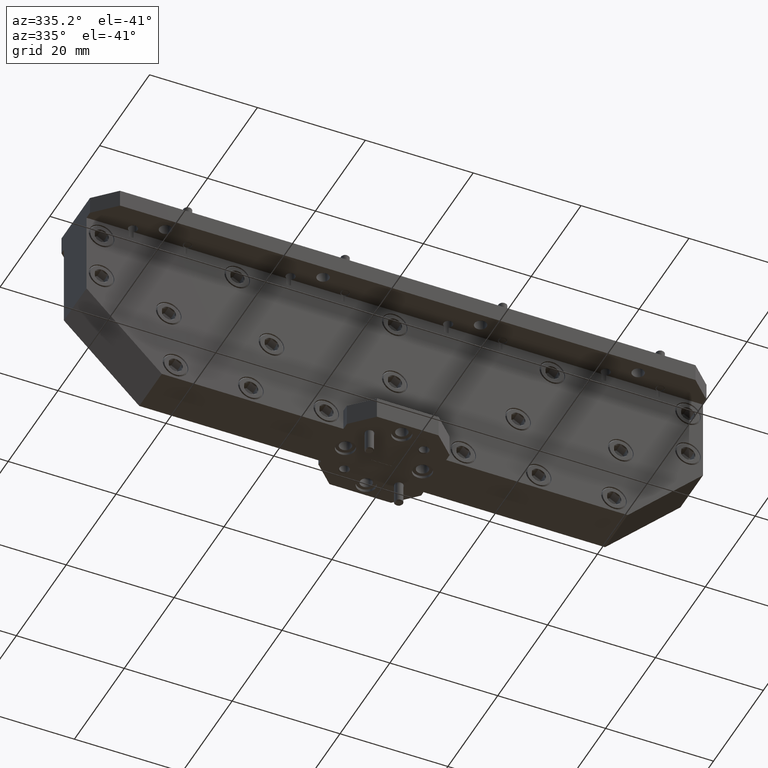
[diagram: clean part render]
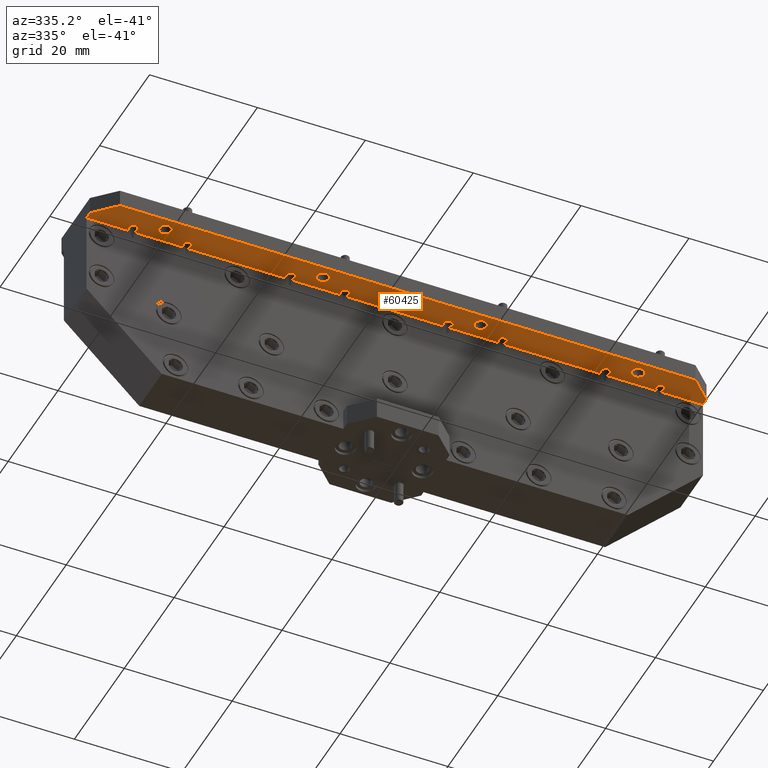
[diagram: same view with one face highlighted and labeled with its STEP entity id]
A machine part, auxiliary view. The second image highlights one B-rep face of the part: STEP entity #60425.
In plain terms, the highlighted planar face has unit normal (0, 0, -1).
Its self-contained STEP definition (entity closure, byte-faithful):
#428 = ORIENTED_EDGE ( 'NONE', *, *, #54810, .F. ) ;
#1046 = EDGE_CURVE ( 'NONE', #100543, #53469, #28962, .T. ) ;
#1075 = DIRECTION ( 'NONE',  ( 2.810403800415408800E-016, 2.130321118248032300E-032, -1.000000000000000000 ) ) ;
#1293 = CARTESIAN_POINT ( 'NONE',  ( -0.7738737822087168300, -0.2358737822087166000, 0.2449999999999993300 ) ) ;
#1312 = CARTESIAN_POINT ( 'NONE',  ( 1.526126217791283300, -0.2358737822087163300, 0.2450000000000000000 ) ) ;
#1395 = CIRCLE ( 'NONE', #94514, 0.04449999999999975500 ) ;
#1747 = VERTEX_POINT ( 'NONE', #98687 ) ;
#1990 = EDGE_CURVE ( 'NONE', #63306, #80687, #40117, .T. ) ;
#2255 = DIRECTION ( 'NONE',  ( 2.810403800415408800E-016, 2.130321118248032300E-032, -1.000000000000000000 ) ) ;
#2482 = LINE ( 'NONE', #51304, #44425 ) ;
#2524 = AXIS2_PLACEMENT_3D ( 'NONE', #48367, #106385, #56806 ) ;
#2632 = CARTESIAN_POINT ( 'NONE',  ( -0.3453762177912832500, -0.2358737822087165500, 0.2449999999999994400 ) ) ;
#2739 = VECTOR ( 'NONE', #58140, 39.37007874015748100 ) ;
#2803 = EDGE_CURVE ( 'NONE', #16704, #89440, #38404, .T. ) ;
#2999 = ORIENTED_EDGE ( 'NONE', *, *, #63690, .F. ) ;
#3288 = VERTEX_POINT ( 'NONE', #84751 ) ;
#3681 = VERTEX_POINT ( 'NONE', #65133 ) ;
#4426 = AXIS2_PLACEMENT_3D ( 'NONE', #24847, #83450, #33226 ) ;
#4440 = CARTESIAN_POINT ( 'NONE',  ( -0.7738737822087168300, -0.2358737822087166000, 0.2449999999999993300 ) ) ;
#4942 = CIRCLE ( 'NONE', #6669, 0.03349999999999979400 ) ;
#5065 = AXIS2_PLACEMENT_3D ( 'NONE', #7204, #65962, #15545 ) ;
#5088 = DIRECTION ( 'NONE',  ( 2.810403800415408800E-016, 2.130321118248032300E-032, -1.000000000000000000 ) ) ;
#5190 = DIRECTION ( 'NONE',  ( 2.810403800415408800E-016, 2.130321118248032300E-032, -1.000000000000000000 ) ) ;
#5421 = VERTEX_POINT ( 'NONE', #105402 ) ;
#5531 = CIRCLE ( 'NONE', #10774, 0.04449999999999969300 ) ;
#5585 = LINE ( 'NONE', #68829, #91914 ) ;
#5810 = DIRECTION ( 'NONE',  ( -1.000000000000000000, 0.0000000000000000000, 0.0000000000000000000 ) ) ;
#5950 = ORIENTED_EDGE ( 'NONE', *, *, #28236, .F. ) ;
#6369 = EDGE_CURVE ( 'NONE', #54012, #3681, #19565, .T. ) ;
#6576 = CARTESIAN_POINT ( 'NONE',  ( 1.923873782208716400, -0.2358737822087162200, 0.2450000000000001100 ) ) ;
#6669 = AXIS2_PLACEMENT_3D ( 'NONE', #1312, #59996, #9740 ) ;
#6758 = CIRCLE ( 'NONE', #52515, 0.03349999999999979400 ) ;
#6891 = ORIENTED_EDGE ( 'NONE', *, *, #33561, .T. ) ;
#7005 = AXIS2_PLACEMENT_3D ( 'NONE', #38067, #96459, #46593 ) ;
#7011 = DIRECTION ( 'NONE',  ( -1.000000000000000000, 0.0000000000000000000, 0.0000000000000000000 ) ) ;
#7182 = DIRECTION ( 'NONE',  ( 2.810403800415408800E-016, 2.130321118248032300E-032, -1.000000000000000000 ) ) ;
#7204 = CARTESIAN_POINT ( 'NONE',  ( 0.7738737822087168300, -0.2358737822087164900, 0.2449999999999997700 ) ) ;
#7913 = CARTESIAN_POINT ( 'NONE',  ( -7.172759518639496200E-017, -0.2070000000000000200, 0.2449999999999995800 ) ) ;
#8030 = DIRECTION ( 'NONE',  ( -1.000000000000000000, 0.0000000000000000000, 0.0000000000000000000 ) ) ;
#8173 = DIRECTION ( 'NONE',  ( 2.810403800415408800E-016, 2.130321118248032300E-032, -1.000000000000000000 ) ) ;
#8541 = DIRECTION ( 'NONE',  ( -1.000000000000000000, 0.0000000000000000000, 0.0000000000000000000 ) ) ;
#9686 = VERTEX_POINT ( 'NONE', #12814 ) ;
#9716 = DIRECTION ( 'NONE',  ( -1.000000000000000000, 0.0000000000000000000, 0.0000000000000000000 ) ) ;
#9740 = DIRECTION ( 'NONE',  ( -1.000000000000000000, 0.0000000000000000000, 0.0000000000000000000 ) ) ;
#9883 = DIRECTION ( 'NONE',  ( -1.000000000000000000, 1.387778780781436600E-017, -2.810403800415408800E-016 ) ) ;
#10774 = AXIS2_PLACEMENT_3D ( 'NONE', #23383, #82045, #31806 ) ;
#10803 = EDGE_CURVE ( 'NONE', #92658, #94042, #1395, .T. ) ;
#11058 = CARTESIAN_POINT ( 'NONE',  ( 0.07593869307895577400, -2.587938693078965200, 0.2449999999999996100 ) ) ;
#11938 = CARTESIAN_POINT ( 'NONE',  ( 0.5750000000000000700, -0.3182500000000000900, 0.2449999999999997200 ) ) ;
#12134 = ORIENTED_EDGE ( 'NONE', *, *, #17657, .F. ) ;
#12220 = CARTESIAN_POINT ( 'NONE',  ( -0.3761262177912831900, -0.2358737822087165500, 0.2449999999999994400 ) ) ;
#12632 = VECTOR ( 'NONE', #104179, 39.37007874015748100 ) ;
#12785 = DIRECTION ( 'NONE',  ( -1.000000000000000000, 0.0000000000000000000, 0.0000000000000000000 ) ) ;
#12794 = CARTESIAN_POINT ( 'NONE',  ( 0.7431237822087168900, -0.2358737822087164900, 0.2449999999999997700 ) ) ;
#12814 = CARTESIAN_POINT ( 'NONE',  ( 0.4096262177912835500, -0.2358737822087165200, 0.2449999999999996300 ) ) ;
#12815 = VECTOR ( 'NONE', #86226, 39.37007874015748100 ) ;
#12994 = EDGE_CURVE ( 'NONE', #80687, #63306, #5531, .T. ) ;
#13504 = CARTESIAN_POINT ( 'NONE',  ( 1.923873782208716400, -0.2358737822087162200, 0.2450000000000001100 ) ) ;
#13593 = CARTESIAN_POINT ( 'NONE',  ( 0.3761262177912837500, -0.2358737822087165200, 0.2449999999999996300 ) ) ;
#13800 = AXIS2_PLACEMENT_3D ( 'NONE', #36926, #95320, #45397 ) ;
#14250 = DIRECTION ( 'NONE',  ( 2.810403800415408800E-016, 2.130321118248032300E-032, -1.000000000000000000 ) ) ;
#14251 = AXIS2_PLACEMENT_3D ( 'NONE', #16904, #67338, #8541 ) ;
#14384 = DIRECTION ( 'NONE',  ( 2.810403800415408800E-016, 2.130321118248032300E-032, -1.000000000000000000 ) ) ;
#14437 = CIRCLE ( 'NONE', #37613, 0.03074999999999993700 ) ;
#14792 = CIRCLE ( 'NONE', #90361, 0.04449999999999975500 ) ;
#14881 = CARTESIAN_POINT ( 'NONE',  ( -0.6194999999999995000, -0.3182500000000000300, 0.2449999999999994100 ) ) ;
#15414 = VERTEX_POINT ( 'NONE', #81799 ) ;
#15545 = DIRECTION ( 'NONE',  ( -1.000000000000000000, 0.0000000000000000000, 0.0000000000000000000 ) ) ;
#15569 = EDGE_CURVE ( 'NONE', #61794, #63623, #14437, .T. ) ;
#15739 = EDGE_CURVE ( 'NONE', #5421, #1747, #6758, .T. ) ;
#16054 = CARTESIAN_POINT ( 'NONE',  ( -0.7403737822087170800, -0.2358737822087166000, 0.2449999999999993300 ) ) ;
#16449 = CIRCLE ( 'NONE', #79153, 0.03074999999999993700 ) ;
#16688 = EDGE_CURVE ( 'NONE', #92559, #28284, #68993, .T. ) ;
#16704 = VERTEX_POINT ( 'NONE', #71040 ) ;
#16904 = CARTESIAN_POINT ( 'NONE',  ( -1.725000000000000100, -0.3182499999999998100, 0.2449999999999991100 ) ) ;
#17100 = CARTESIAN_POINT ( 'NONE',  ( 1.543113115711845600, -0.2070000000000000500, 0.2450000000000000000 ) ) ;
#17318 = VERTEX_POINT ( 'NONE', #12794 ) ;
#17466 = CARTESIAN_POINT ( 'NONE',  ( 1.526126217791283300, -0.2358737822087163300, 0.2450000000000000000 ) ) ;
#17657 = EDGE_CURVE ( 'NONE', #98293, #58405, #73768, .T. ) ;
#17829 = EDGE_CURVE ( 'NONE', #63854, #98293, #59180, .T. ) ;
#18641 = VERTEX_POINT ( 'NONE', #57730 ) ;
#18682 = DIRECTION ( 'NONE',  ( 2.810403800415408800E-016, 2.130321118248032300E-032, -1.000000000000000000 ) ) ;
#18746 = CIRCLE ( 'NONE', #5065, 0.03074999999999993700 ) ;
#18873 = VERTEX_POINT ( 'NONE', #53613 ) ;
#19068 = AXIS2_PLACEMENT_3D ( 'NONE', #87214, #14250, #85830 ) ;
#19263 = CARTESIAN_POINT ( 'NONE',  ( 1.559626217791283000, -0.2358737822087163300, 0.2450000000000000000 ) ) ;
#19565 = CIRCLE ( 'NONE', #93273, 0.03074999999999993700 ) ;
#19814 = EDGE_LOOP ( 'NONE', ( #30974, #32477 ) ) ;
#20060 = CARTESIAN_POINT ( 'NONE',  ( -1.515549488572682600, -0.2069999999999999600, 0.2449999999999991400 ) ) ;
#20299 = DIRECTION ( 'NONE',  ( -1.000000000000000000, 0.0000000000000000000, 0.0000000000000000000 ) ) ;
#20576 = DIRECTION ( 'NONE',  ( -1.000000000000000000, 0.0000000000000000000, 0.0000000000000000000 ) ) ;
#20662 = EDGE_CURVE ( 'NONE', #41303, #60168, #16449, .T. ) ;
#20809 = CIRCLE ( 'NONE', #45651, 0.03074999999999993700 ) ;
#21023 = EDGE_CURVE ( 'NONE', #49986, #54012, #101159, .T. ) ;
#21030 = LINE ( 'NONE', #25515, #43416 ) ;
#21827 = EDGE_LOOP ( 'NONE', ( #22301, #55891, #25181, #67484, #84168, #45009, #71260, #12134, #107056, #31520, #100914, #26607, #36542, #67384, #29201, #53198, #68616, #47997, #62162, #51310, #94244, #26178, #22426, #55982, #88935, #77695, #50034, #76321, #75473, #428, #50099, #62027, #61175, #6891, #59152, #24156, #69631, #5950 ) ) ;
#21887 = DIRECTION ( 'NONE',  ( -1.000000000000000000, 0.0000000000000000000, 0.0000000000000000000 ) ) ;
#21975 = DIRECTION ( 'NONE',  ( -1.000000000000000000, 0.0000000000000000000, 0.0000000000000000000 ) ) ;
#22301 = ORIENTED_EDGE ( 'NONE', *, *, #15739, .F. ) ;
#22426 = ORIENTED_EDGE ( 'NONE', *, *, #82022, .F. ) ;
#23383 = CARTESIAN_POINT ( 'NONE',  ( -0.5749999999999998400, -0.3182500000000000300, 0.2449999999999994100 ) ) ;
#23556 = CARTESIAN_POINT ( 'NONE',  ( 1.954623782208716200, -0.2358737822087162200, 0.2450000000000001100 ) ) ;
#23998 = CARTESIAN_POINT ( 'NONE',  ( 2.099999999999999600, -0.4119999999999998700, 0.2450000000000001900 ) ) ;
#24156 = ORIENTED_EDGE ( 'NONE', *, *, #52113, .F. ) ;
#24786 = EDGE_CURVE ( 'NONE', #60042, #69891, #20809, .T. ) ;
#24800 = LINE ( 'NONE', #79556, #27399 ) ;
#24826 = VERTEX_POINT ( 'NONE', #92257 ) ;
#24847 = CARTESIAN_POINT ( 'NONE',  ( -1.526126217791283300, -0.2358737822087165200, 0.2449999999999991400 ) ) ;
#25020 = CARTESIAN_POINT ( 'NONE',  ( -0.3761262177912831900, -0.2358737822087165500, 0.2449999999999994400 ) ) ;
#25181 = ORIENTED_EDGE ( 'NONE', *, *, #26199, .F. ) ;
#25439 = VECTOR ( 'NONE', #39071, 39.37007874015748100 ) ;
#25515 = CARTESIAN_POINT ( 'NONE',  ( -7.172759518639496200E-017, -0.2070000000000000200, 0.2449999999999995800 ) ) ;
#25738 = VECTOR ( 'NONE', #9883, 39.37007874015748100 ) ;
#25844 = VERTEX_POINT ( 'NONE', #102576 ) ;
#25916 = DIRECTION ( 'NONE',  ( -1.000000000000000000, 0.0000000000000000000, 0.0000000000000000000 ) ) ;
#26138 = CARTESIAN_POINT ( 'NONE',  ( 0.3761262177912837500, -0.2358737822087165200, 0.2449999999999996300 ) ) ;
#26178 = ORIENTED_EDGE ( 'NONE', *, *, #84105, .F. ) ;
#26199 = EDGE_CURVE ( 'NONE', #90205, #86973, #46362, .T. ) ;
#26221 = VERTEX_POINT ( 'NONE', #17100 ) ;
#26607 = ORIENTED_EDGE ( 'NONE', *, *, #52581, .F. ) ;
#26666 = EDGE_LOOP ( 'NONE', ( #58586, #2999 ) ) ;
#27189 = CARTESIAN_POINT ( 'NONE',  ( -1.957373782208716100, -0.2358737822087165200, 0.2449999999999990200 ) ) ;
#27399 = VECTOR ( 'NONE', #79924, 39.37007874015748100 ) ;
#27496 = VERTEX_POINT ( 'NONE', #27189 ) ;
#27808 = CIRCLE ( 'NONE', #32995, 0.03349999999999979400 ) ;
#28236 = EDGE_CURVE ( 'NONE', #1747, #27496, #65334, .T. ) ;
#28284 = VERTEX_POINT ( 'NONE', #73333 ) ;
#28839 = ORIENTED_EDGE ( 'NONE', *, *, #57403, .F. ) ;
#28851 = CARTESIAN_POINT ( 'NONE',  ( 1.492626217791283500, -0.2358737822087163300, 0.2450000000000000000 ) ) ;
#28962 = CIRCLE ( 'NONE', #106202, 0.04449999999999975500 ) ;
#29201 = ORIENTED_EDGE ( 'NONE', *, *, #105776, .F. ) ;
#29354 = DIRECTION ( 'NONE',  ( 2.810403800415408800E-016, 2.130321118248032300E-032, -1.000000000000000000 ) ) ;
#29365 = CARTESIAN_POINT ( 'NONE',  ( -0.7738737822087168300, -0.2358737822087166000, 0.2449999999999993300 ) ) ;
#29423 = DIRECTION ( 'NONE',  ( 2.810403800415408800E-016, 2.130321118248032300E-032, -1.000000000000000000 ) ) ;
#29585 = VECTOR ( 'NONE', #33288, 39.37007874015748100 ) ;
#30289 = CARTESIAN_POINT ( 'NONE',  ( -7.172759518639496200E-017, -0.2070000000000000200, 0.2449999999999995800 ) ) ;
#30423 = VERTEX_POINT ( 'NONE', #89818 ) ;
#30488 = CIRCLE ( 'NONE', #83881, 0.03074999999999993700 ) ;
#30763 = CARTESIAN_POINT ( 'NONE',  ( 0.5305000000000003000, -0.3182500000000000900, 0.2449999999999997200 ) ) ;
#30974 = ORIENTED_EDGE ( 'NONE', *, *, #2803, .F. ) ;
#31112 = CARTESIAN_POINT ( 'NONE',  ( -0.4068762177912831300, -0.2358737822087165500, 0.2449999999999994400 ) ) ;
#31520 = ORIENTED_EDGE ( 'NONE', *, *, #80889, .F. ) ;
#31806 = DIRECTION ( 'NONE',  ( -1.000000000000000000, 0.0000000000000000000, 0.0000000000000000000 ) ) ;
#32393 = AXIS2_PLACEMENT_3D ( 'NONE', #29365, #87899, #37766 ) ;
#32477 = ORIENTED_EDGE ( 'NONE', *, *, #85673, .F. ) ;
#32995 = AXIS2_PLACEMENT_3D ( 'NONE', #105646, #56021, #5810 ) ;
#33226 = DIRECTION ( 'NONE',  ( -1.000000000000000000, 0.0000000000000000000, 0.0000000000000000000 ) ) ;
#33288 = DIRECTION ( 'NONE',  ( -0.7071067811865462400, -0.7071067811865487900, -1.987255585146176500E-016 ) ) ;
#33298 = AXIS2_PLACEMENT_3D ( 'NONE', #4440, #63115, #12785 ) ;
#33395 = DIRECTION ( 'NONE',  ( -1.000000000000000000, 0.0000000000000000000, 0.0000000000000000000 ) ) ;
#33561 = EDGE_CURVE ( 'NONE', #24826, #95764, #87626, .T. ) ;
#34530 = DIRECTION ( 'NONE',  ( -1.000000000000000000, 0.0000000000000000000, 0.0000000000000000000 ) ) ;
#36038 = FACE_BOUND ( 'NONE', #102183, .T. ) ;
#36284 = EDGE_CURVE ( 'NONE', #63623, #17318, #18746, .T. ) ;
#36542 = ORIENTED_EDGE ( 'NONE', *, *, #24786, .F. ) ;
#36561 = CARTESIAN_POINT ( 'NONE',  ( -2.250000000000000900, -4.913877386157913000, 0.2449999999999989100 ) ) ;
#36926 = CARTESIAN_POINT ( 'NONE',  ( 0.3761262177912837500, -0.2358737822087165200, 0.2449999999999996300 ) ) ;
#37613 = AXIS2_PLACEMENT_3D ( 'NONE', #58400, #8173, #66960 ) ;
#37766 = DIRECTION ( 'NONE',  ( -1.000000000000000000, 0.0000000000000000000, 0.0000000000000000000 ) ) ;
#37848 = EDGE_CURVE ( 'NONE', #64992, #103769, #4942, .T. ) ;
#38067 = CARTESIAN_POINT ( 'NONE',  ( -1.526126217791283300, -0.2358737822087165200, 0.2449999999999991400 ) ) ;
#38404 = CIRCLE ( 'NONE', #14251, 0.04449999999999975500 ) ;
#38547 = CARTESIAN_POINT ( 'NONE',  ( 1.769499999999999600, -0.3182499999999998700, 0.2450000000000000500 ) ) ;
#39071 = DIRECTION ( 'NONE',  ( -1.000000000000000000, 1.387778780781436600E-017, -2.810403800415408800E-016 ) ) ;
#39081 = AXIS2_PLACEMENT_3D ( 'NONE', #13504, #72316, #21887 ) ;
#39437 = CARTESIAN_POINT ( 'NONE',  ( 1.680500000000000100, -0.3182499999999998700, 0.2450000000000000500 ) ) ;
#39509 = CARTESIAN_POINT ( 'NONE',  ( 0.3931131157118456000, -0.2070000000000000200, 0.2449999999999996300 ) ) ;
#39586 = CARTESIAN_POINT ( 'NONE',  ( -0.3867029470098837800, -0.2070000000000000200, 0.2449999999999994400 ) ) ;
#40117 = CIRCLE ( 'NONE', #19068, 0.04449999999999969300 ) ;
#40383 = VERTEX_POINT ( 'NONE', #56039 ) ;
#41093 = CARTESIAN_POINT ( 'NONE',  ( -2.250000000000000900, -0.2619999999999989600, 0.2449999999999989100 ) ) ;
#41303 = VERTEX_POINT ( 'NONE', #31112 ) ;
#41478 = CARTESIAN_POINT ( 'NONE',  ( -0.7568868842881552000, -0.2070000000000000200, 0.2449999999999993300 ) ) ;
#41910 = CARTESIAN_POINT ( 'NONE',  ( -1.940860680129278000, -0.2069999999999999600, 0.2449999999999990200 ) ) ;
#42374 = DIRECTION ( 'NONE',  ( -1.000000000000000000, 1.387778780781436600E-017, -2.810403800415408800E-016 ) ) ;
#42925 = EDGE_CURVE ( 'NONE', #86973, #5421, #50687, .T. ) ;
#43416 = VECTOR ( 'NONE', #42374, 39.37007874015748100 ) ;
#44137 = ORIENTED_EDGE ( 'NONE', *, *, #12994, .F. ) ;
#44425 = VECTOR ( 'NONE', #59793, 39.37007874015748100 ) ;
#45009 = ORIENTED_EDGE ( 'NONE', *, *, #71470, .F. ) ;
#45049 = DIRECTION ( 'NONE',  ( 1.000000000000000000, -1.387778780781436600E-017, 2.810403800415408800E-016 ) ) ;
#45397 = DIRECTION ( 'NONE',  ( -1.000000000000000000, 0.0000000000000000000, 0.0000000000000000000 ) ) ;
#45651 = AXIS2_PLACEMENT_3D ( 'NONE', #25020, #83615, #33395 ) ;
#46362 = CIRCLE ( 'NONE', #4426, 0.03074999999999993700 ) ;
#46593 = DIRECTION ( 'NONE',  ( -1.000000000000000000, 0.0000000000000000000, 0.0000000000000000000 ) ) ;
#47223 = VERTEX_POINT ( 'NONE', #87454 ) ;
#47779 = LINE ( 'NONE', #30289, #25439 ) ;
#47997 = ORIENTED_EDGE ( 'NONE', *, *, #62314, .F. ) ;
#48367 = CARTESIAN_POINT ( 'NONE',  ( 1.526126217791283300, -0.2358737822087163300, 0.2450000000000000000 ) ) ;
#49052 = AXIS2_PLACEMENT_3D ( 'NONE', #69134, #18682, #77442 ) ;
#49986 = VERTEX_POINT ( 'NONE', #23556 ) ;
#50034 = ORIENTED_EDGE ( 'NONE', *, *, #6369, .F. ) ;
#50065 = CARTESIAN_POINT ( 'NONE',  ( 0.5750000000000000700, -0.3182500000000000900, 0.2449999999999997200 ) ) ;
#50099 = ORIENTED_EDGE ( 'NONE', *, *, #16688, .F. ) ;
#50202 = DIRECTION ( 'NONE',  ( 2.810403800415408800E-016, 2.130321118248032300E-032, -1.000000000000000000 ) ) ;
#50287 = DIRECTION ( 'NONE',  ( -1.000000000000000000, 0.0000000000000000000, 0.0000000000000000000 ) ) ;
#50687 = LINE ( 'NONE', #60145, #25738 ) ;
#51269 = CARTESIAN_POINT ( 'NONE',  ( 1.923873782208716400, -0.2358737822087162200, 0.2450000000000001100 ) ) ;
#51304 = CARTESIAN_POINT ( 'NONE',  ( -2.250000000000000900, -4.913877386157913000, 0.2449999999999989100 ) ) ;
#51310 = ORIENTED_EDGE ( 'NONE', *, *, #36284, .F. ) ;
#52113 = EDGE_CURVE ( 'NONE', #55143, #25844, #96175, .T. ) ;
#52467 = CARTESIAN_POINT ( 'NONE',  ( -1.923873782208716400, -0.2358737822087165200, 0.2449999999999990200 ) ) ;
#52515 = AXIS2_PLACEMENT_3D ( 'NONE', #52467, #2255, #60951 ) ;
#52581 = EDGE_CURVE ( 'NONE', #69891, #41303, #60068, .T. ) ;
#52662 = CARTESIAN_POINT ( 'NONE',  ( -7.172759518639496200E-017, -0.2070000000000000200, 0.2449999999999995800 ) ) ;
#53141 = PLANE ( 'NONE',  #101633 ) ;
#53170 = EDGE_CURVE ( 'NONE', #58405, #40383, #58379, .T. ) ;
#53198 = ORIENTED_EDGE ( 'NONE', *, *, #65535, .F. ) ;
#53469 = VERTEX_POINT ( 'NONE', #30763 ) ;
#53613 = CARTESIAN_POINT ( 'NONE',  ( 0.7632970529901159700, -0.2070000000000000200, 0.2449999999999997700 ) ) ;
#54012 = VERTEX_POINT ( 'NONE', #58574 ) ;
#54504 = CARTESIAN_POINT ( 'NONE',  ( -7.172759518639496200E-017, -0.2070000000000000200, 0.2449999999999995800 ) ) ;
#54770 = CARTESIAN_POINT ( 'NONE',  ( 2.249999999999999100, -0.2619999999999995700, 0.2450000000000002200 ) ) ;
#54810 = EDGE_CURVE ( 'NONE', #28284, #18641, #24800, .T. ) ;
#55143 = VERTEX_POINT ( 'NONE', #41910 ) ;
#55295 = CARTESIAN_POINT ( 'NONE',  ( -1.923873782208716400, -0.2358737822087165200, 0.2449999999999990200 ) ) ;
#55402 = CARTESIAN_POINT ( 'NONE',  ( 1.724999999999999900, -0.3182499999999998700, 0.2450000000000000500 ) ) ;
#55496 = LINE ( 'NONE', #73716, #97068 ) ;
#55891 = ORIENTED_EDGE ( 'NONE', *, *, #42925, .F. ) ;
#55955 = CARTESIAN_POINT ( 'NONE',  ( -0.8073737822087165800, -0.2358737822087166000, 0.2449999999999993300 ) ) ;
#55982 = ORIENTED_EDGE ( 'NONE', *, *, #37848, .F. ) ;
#56021 = DIRECTION ( 'NONE',  ( 2.810403800415408800E-016, 2.130321118248032300E-032, -1.000000000000000000 ) ) ;
#56039 = CARTESIAN_POINT ( 'NONE',  ( -0.7908606801292784600, -0.2070000000000000200, 0.2449999999999993300 ) ) ;
#56806 = DIRECTION ( 'NONE',  ( -1.000000000000000000, 0.0000000000000000000, 0.0000000000000000000 ) ) ;
#57210 = DIRECTION ( 'NONE',  ( 2.810403800415408800E-016, 2.130321118248032300E-032, -1.000000000000000000 ) ) ;
#57403 = EDGE_CURVE ( 'NONE', #53469, #100543, #63557, .T. ) ;
#57730 = CARTESIAN_POINT ( 'NONE',  ( 1.934450511427318100, -0.2070000000000000500, 0.2450000000000001100 ) ) ;
#58140 = DIRECTION ( 'NONE',  ( -1.000000000000000000, 1.387778780781436600E-017, -2.810403800415408800E-016 ) ) ;
#58169 = AXIS2_PLACEMENT_3D ( 'NONE', #79690, #29423, #87955 ) ;
#58233 = CIRCLE ( 'NONE', #91556, 0.03349999999999979400 ) ;
#58379 = CIRCLE ( 'NONE', #33298, 0.03349999999999979400 ) ;
#58400 = CARTESIAN_POINT ( 'NONE',  ( 0.7738737822087168300, -0.2358737822087164900, 0.2449999999999997700 ) ) ;
#58405 = VERTEX_POINT ( 'NONE', #55955 ) ;
#58446 = FACE_OUTER_BOUND ( 'NONE', #21827, .T. ) ;
#58574 = CARTESIAN_POINT ( 'NONE',  ( 1.893123782208716400, -0.2358737822087162200, 0.2450000000000001100 ) ) ;
#58586 = ORIENTED_EDGE ( 'NONE', *, *, #10803, .F. ) ;
#59152 = ORIENTED_EDGE ( 'NONE', *, *, #78415, .T. ) ;
#59180 = CIRCLE ( 'NONE', #32393, 0.03349999999999979400 ) ;
#59193 = EDGE_CURVE ( 'NONE', #27496, #55143, #27808, .T. ) ;
#59762 = DIRECTION ( 'NONE',  ( -1.000000000000000000, 0.0000000000000000000, 0.0000000000000000000 ) ) ;
#59793 = DIRECTION ( 'NONE',  ( 1.387778780781436600E-017, 1.000000000000000000, 2.759659579148537200E-032 ) ) ;
#59821 = EDGE_CURVE ( 'NONE', #30423, #60042, #89115, .T. ) ;
#59979 = DIRECTION ( 'NONE',  ( 2.810403800415408800E-016, 2.130321118248032300E-032, -1.000000000000000000 ) ) ;
#59996 = DIRECTION ( 'NONE',  ( 2.810403800415408800E-016, 2.130321118248032300E-032, -1.000000000000000000 ) ) ;
#60042 = VERTEX_POINT ( 'NONE', #63204 ) ;
#60068 = CIRCLE ( 'NONE', #60743, 0.03074999999999993700 ) ;
#60145 = CARTESIAN_POINT ( 'NONE',  ( -7.172759518639496200E-017, -0.2070000000000000200, 0.2449999999999995800 ) ) ;
#60168 = VERTEX_POINT ( 'NONE', #39586 ) ;
#60425 = ADVANCED_FACE ( 'NONE', ( #58446, #102561, #36038, #80666, #99967 ), #53141, .T. ) ;
#60743 = AXIS2_PLACEMENT_3D ( 'NONE', #12220, #71026, #20576 ) ;
#60951 = DIRECTION ( 'NONE',  ( -1.000000000000000000, 0.0000000000000000000, 0.0000000000000000000 ) ) ;
#61144 = EDGE_CURVE ( 'NONE', #15414, #90205, #30488, .T. ) ;
#61175 = ORIENTED_EDGE ( 'NONE', *, *, #95013, .F. ) ;
#61794 = VERTEX_POINT ( 'NONE', #107668 ) ;
#61939 = CARTESIAN_POINT ( 'NONE',  ( -1.536702947009883900, -0.2069999999999999600, 0.2449999999999991400 ) ) ;
#62027 = ORIENTED_EDGE ( 'NONE', *, *, #69945, .T. ) ;
#62162 = ORIENTED_EDGE ( 'NONE', *, *, #100796, .F. ) ;
#62314 = EDGE_CURVE ( 'NONE', #18873, #102406, #101447, .T. ) ;
#62539 = DIRECTION ( 'NONE',  ( 1.387778780781436600E-017, 1.000000000000000000, 2.759659579148537200E-032 ) ) ;
#62949 = VECTOR ( 'NONE', #86427, 39.37007874015748100 ) ;
#63115 = DIRECTION ( 'NONE',  ( 2.810403800415408800E-016, 2.130321118248032300E-032, -1.000000000000000000 ) ) ;
#63204 = CARTESIAN_POINT ( 'NONE',  ( -0.3655494885726826000, -0.2070000000000000200, 0.2449999999999994400 ) ) ;
#63306 = VERTEX_POINT ( 'NONE', #14881 ) ;
#63557 = CIRCLE ( 'NONE', #92256, 0.04449999999999975500 ) ;
#63623 = VERTEX_POINT ( 'NONE', #87575 ) ;
#63690 = EDGE_CURVE ( 'NONE', #94042, #92658, #14792, .T. ) ;
#63777 = DIRECTION ( 'NONE',  ( -1.000000000000000000, 0.0000000000000000000, 0.0000000000000000000 ) ) ;
#63854 = VERTEX_POINT ( 'NONE', #41478 ) ;
#63896 = DIRECTION ( 'NONE',  ( -1.000000000000000000, 0.0000000000000000000, 0.0000000000000000000 ) ) ;
#64292 = AXIS2_PLACEMENT_3D ( 'NONE', #51269, #1075, #59762 ) ;
#64765 = CARTESIAN_POINT ( 'NONE',  ( 1.724999999999999900, -0.3182499999999998700, 0.2450000000000000500 ) ) ;
#64992 = VERTEX_POINT ( 'NONE', #19263 ) ;
#65133 = CARTESIAN_POINT ( 'NONE',  ( 1.913297052990114500, -0.2070000000000000500, 0.2450000000000001100 ) ) ;
#65334 = CIRCLE ( 'NONE', #78422, 0.03349999999999979400 ) ;
#65535 = EDGE_CURVE ( 'NONE', #9686, #47223, #86086, .T. ) ;
#65962 = DIRECTION ( 'NONE',  ( 2.810403800415408800E-016, 2.130321118248032300E-032, -1.000000000000000000 ) ) ;
#66960 = DIRECTION ( 'NONE',  ( -1.000000000000000000, 0.0000000000000000000, 0.0000000000000000000 ) ) ;
#67338 = DIRECTION ( 'NONE',  ( 2.810403800415408800E-016, 2.130321118248032300E-032, -1.000000000000000000 ) ) ;
#67384 = ORIENTED_EDGE ( 'NONE', *, *, #59821, .F. ) ;
#67484 = ORIENTED_EDGE ( 'NONE', *, *, #61144, .F. ) ;
#67787 = VERTEX_POINT ( 'NONE', #20060 ) ;
#68616 = ORIENTED_EDGE ( 'NONE', *, *, #106656, .F. ) ;
#68829 = CARTESIAN_POINT ( 'NONE',  ( -2.250000000000000900, -0.4119999999999998700, 0.2449999999999989100 ) ) ;
#68993 = LINE ( 'NONE', #103408, #85702 ) ;
#69134 = CARTESIAN_POINT ( 'NONE',  ( 0.7738737822087168300, -0.2358737822087164900, 0.2449999999999997700 ) ) ;
#69470 = CIRCLE ( 'NONE', #58169, 0.04449999999999975500 ) ;
#69631 = ORIENTED_EDGE ( 'NONE', *, *, #59193, .F. ) ;
#69891 = VERTEX_POINT ( 'NONE', #2632 ) ;
#69944 = EDGE_LOOP ( 'NONE', ( #92971, #28839 ) ) ;
#69945 = EDGE_CURVE ( 'NONE', #92559, #75232, #76952, .T. ) ;
#70743 = DIRECTION ( 'NONE',  ( 2.810403800415408800E-016, 2.130321118248032300E-032, -1.000000000000000000 ) ) ;
#71026 = DIRECTION ( 'NONE',  ( 2.810403800415408800E-016, 2.130321118248032300E-032, -1.000000000000000000 ) ) ;
#71040 = CARTESIAN_POINT ( 'NONE',  ( -1.680500000000000300, -0.3182499999999998100, 0.2449999999999991100 ) ) ;
#71260 = ORIENTED_EDGE ( 'NONE', *, *, #53170, .F. ) ;
#71470 = EDGE_CURVE ( 'NONE', #40383, #67787, #55496, .T. ) ;
#72214 = CARTESIAN_POINT ( 'NONE',  ( 0.6194999999999997200, -0.3182500000000000900, 0.2449999999999997200 ) ) ;
#72316 = DIRECTION ( 'NONE',  ( 2.810403800415408800E-016, 2.130321118248032300E-032, -1.000000000000000000 ) ) ;
#72408 = DIRECTION ( 'NONE',  ( 2.810403800415408800E-016, 2.130321118248032300E-032, -1.000000000000000000 ) ) ;
#73194 = DIRECTION ( 'NONE',  ( -1.000000000000000000, 0.0000000000000000000, 0.0000000000000000000 ) ) ;
#73333 = CARTESIAN_POINT ( 'NONE',  ( 2.249999999999999100, -0.2070000000000003200, 0.2450000000000002200 ) ) ;
#73458 = ORIENTED_EDGE ( 'NONE', *, *, #1990, .F. ) ;
#73716 = CARTESIAN_POINT ( 'NONE',  ( -7.172759518639496200E-017, -0.2070000000000000200, 0.2449999999999995800 ) ) ;
#73768 = CIRCLE ( 'NONE', #81558, 0.03349999999999979400 ) ;
#74695 = EDGE_CURVE ( 'NONE', #18641, #49986, #99910, .T. ) ;
#75103 = CARTESIAN_POINT ( 'NONE',  ( -1.769499999999999900, -0.3182499999999998100, 0.2449999999999991100 ) ) ;
#75232 = VERTEX_POINT ( 'NONE', #23998 ) ;
#75473 = ORIENTED_EDGE ( 'NONE', *, *, #74695, .F. ) ;
#76215 = DIRECTION ( 'NONE',  ( 2.810403800415408800E-016, 2.130321118248032300E-032, -1.000000000000000000 ) ) ;
#76321 = ORIENTED_EDGE ( 'NONE', *, *, #21023, .F. ) ;
#76407 = EDGE_CURVE ( 'NONE', #26221, #64992, #84112, .T. ) ;
#76952 = LINE ( 'NONE', #107906, #29585 ) ;
#77442 = DIRECTION ( 'NONE',  ( -1.000000000000000000, 0.0000000000000000000, 0.0000000000000000000 ) ) ;
#77695 = ORIENTED_EDGE ( 'NONE', *, *, #91691, .F. ) ;
#78180 = CIRCLE ( 'NONE', #49052, 0.03074999999999993700 ) ;
#78415 = EDGE_CURVE ( 'NONE', #95764, #25844, #2482, .T. ) ;
#78422 = AXIS2_PLACEMENT_3D ( 'NONE', #55295, #5088, #63777 ) ;
#79110 = CIRCLE ( 'NONE', #13800, 0.03349999999999979400 ) ;
#79153 = AXIS2_PLACEMENT_3D ( 'NONE', #106783, #57210, #7011 ) ;
#79298 = CARTESIAN_POINT ( 'NONE',  ( -7.172759518639496200E-017, -0.2070000000000000200, 0.2449999999999995800 ) ) ;
#79556 = CARTESIAN_POINT ( 'NONE',  ( -7.172759518639496200E-017, -0.2070000000000000200, 0.2449999999999995800 ) ) ;
#79619 = CARTESIAN_POINT ( 'NONE',  ( -1.526126217791283300, -0.2358737822087165200, 0.2449999999999991400 ) ) ;
#79690 = CARTESIAN_POINT ( 'NONE',  ( -1.725000000000000100, -0.3182499999999998100, 0.2449999999999991100 ) ) ;
#79924 = DIRECTION ( 'NONE',  ( -1.000000000000000000, 1.387778780781436600E-017, -2.810403800415408800E-016 ) ) ;
#80046 = CIRCLE ( 'NONE', #7005, 0.03074999999999993700 ) ;
#80666 = FACE_BOUND ( 'NONE', #69944, .T. ) ;
#80687 = VERTEX_POINT ( 'NONE', #81959 ) ;
#80889 = EDGE_CURVE ( 'NONE', #60168, #63854, #21030, .T. ) ;
#81558 = AXIS2_PLACEMENT_3D ( 'NONE', #1293, #59979, #9716 ) ;
#81799 = CARTESIAN_POINT ( 'NONE',  ( -1.495376217791283300, -0.2358737822087165200, 0.2449999999999991400 ) ) ;
#81959 = CARTESIAN_POINT ( 'NONE',  ( -0.5305000000000000800, -0.3182500000000000300, 0.2449999999999994100 ) ) ;
#81965 = DIRECTION ( 'NONE',  ( -1.000000000000000000, 1.387778780781436600E-017, -2.810403800415408800E-016 ) ) ;
#82022 = EDGE_CURVE ( 'NONE', #103769, #3288, #88780, .T. ) ;
#82045 = DIRECTION ( 'NONE',  ( 2.810403800415408800E-016, 2.130321118248032300E-032, -1.000000000000000000 ) ) ;
#83067 = AXIS2_PLACEMENT_3D ( 'NONE', #13593, #72408, #21975 ) ;
#83450 = DIRECTION ( 'NONE',  ( 2.810403800415408800E-016, 2.130321118248032300E-032, -1.000000000000000000 ) ) ;
#83615 = DIRECTION ( 'NONE',  ( 2.810403800415408800E-016, 2.130321118248032300E-032, -1.000000000000000000 ) ) ;
#83881 = AXIS2_PLACEMENT_3D ( 'NONE', #79619, #29354, #87885 ) ;
#84105 = EDGE_CURVE ( 'NONE', #3288, #61794, #47779, .T. ) ;
#84112 = CIRCLE ( 'NONE', #2524, 0.03349999999999979400 ) ;
#84168 = ORIENTED_EDGE ( 'NONE', *, *, #108121, .F. ) ;
#84717 = DIRECTION ( 'NONE',  ( 2.810403800415408800E-016, 2.130321118248032300E-032, -1.000000000000000000 ) ) ;
#84751 = CARTESIAN_POINT ( 'NONE',  ( 1.509139319870720800, -0.2070000000000000500, 0.2450000000000000000 ) ) ;
#85673 = EDGE_CURVE ( 'NONE', #89440, #16704, #69470, .T. ) ;
#85702 = VECTOR ( 'NONE', #62539, 39.37007874015748100 ) ;
#85830 = DIRECTION ( 'NONE',  ( -1.000000000000000000, 0.0000000000000000000, 0.0000000000000000000 ) ) ;
#86086 = CIRCLE ( 'NONE', #83067, 0.03349999999999979400 ) ;
#86226 = DIRECTION ( 'NONE',  ( -1.000000000000000000, 1.387778780781436600E-017, -2.810403800415408800E-016 ) ) ;
#86427 = DIRECTION ( 'NONE',  ( -0.7071067811865462400, 0.7071067811865487900, -1.987255585146176500E-016 ) ) ;
#86973 = VERTEX_POINT ( 'NONE', #61939 ) ;
#87214 = CARTESIAN_POINT ( 'NONE',  ( -0.5749999999999998400, -0.3182500000000000300, 0.2449999999999994100 ) ) ;
#87454 = CARTESIAN_POINT ( 'NONE',  ( 0.3426262177912839400, -0.2358737822087165200, 0.2449999999999996300 ) ) ;
#87575 = CARTESIAN_POINT ( 'NONE',  ( 0.8046237822087167800, -0.2358737822087164900, 0.2449999999999997700 ) ) ;
#87626 = LINE ( 'NONE', #11058, #62949 ) ;
#87885 = DIRECTION ( 'NONE',  ( -1.000000000000000000, 0.0000000000000000000, 0.0000000000000000000 ) ) ;
#87899 = DIRECTION ( 'NONE',  ( 2.810403800415408800E-016, 2.130321118248032300E-032, -1.000000000000000000 ) ) ;
#87955 = DIRECTION ( 'NONE',  ( -1.000000000000000000, 0.0000000000000000000, 0.0000000000000000000 ) ) ;
#88780 = CIRCLE ( 'NONE', #100262, 0.03349999999999979400 ) ;
#88935 = ORIENTED_EDGE ( 'NONE', *, *, #76407, .F. ) ;
#89115 = LINE ( 'NONE', #7913, #2739 ) ;
#89440 = VERTEX_POINT ( 'NONE', #75103 ) ;
#89818 = CARTESIAN_POINT ( 'NONE',  ( 0.3591393198707219000, -0.2070000000000000200, 0.2449999999999996300 ) ) ;
#90205 = VERTEX_POINT ( 'NONE', #90985 ) ;
#90361 = AXIS2_PLACEMENT_3D ( 'NONE', #64765, #14384, #73194 ) ;
#90985 = CARTESIAN_POINT ( 'NONE',  ( -1.556876217791283200, -0.2358737822087165200, 0.2449999999999991400 ) ) ;
#91556 = AXIS2_PLACEMENT_3D ( 'NONE', #26138, #84717, #34530 ) ;
#91691 = EDGE_CURVE ( 'NONE', #3681, #26221, #101614, .T. ) ;
#91914 = VECTOR ( 'NONE', #93685, 39.37007874015748100 ) ;
#92256 = AXIS2_PLACEMENT_3D ( 'NONE', #11938, #70743, #20299 ) ;
#92257 = CARTESIAN_POINT ( 'NONE',  ( -2.100000000000000500, -0.4119999999999998700, 0.2449999999999989700 ) ) ;
#92559 = VERTEX_POINT ( 'NONE', #54770 ) ;
#92658 = VERTEX_POINT ( 'NONE', #38547 ) ;
#92971 = ORIENTED_EDGE ( 'NONE', *, *, #1046, .F. ) ;
#93273 = AXIS2_PLACEMENT_3D ( 'NONE', #6576, #7182, #8030 ) ;
#93647 = VECTOR ( 'NONE', #103716, 39.37007874015748100 ) ;
#93685 = DIRECTION ( 'NONE',  ( 1.000000000000000000, -1.387778780781436600E-017, 2.810403800415408800E-016 ) ) ;
#94042 = VERTEX_POINT ( 'NONE', #39437 ) ;
#94244 = ORIENTED_EDGE ( 'NONE', *, *, #15569, .F. ) ;
#94514 = AXIS2_PLACEMENT_3D ( 'NONE', #55402, #5190, #63896 ) ;
#94992 = DIRECTION ( 'NONE',  ( 2.810403800415408800E-016, 2.130321118248032000E-032, -1.000000000000000000 ) ) ;
#95013 = EDGE_CURVE ( 'NONE', #24826, #75232, #5585, .T. ) ;
#95320 = DIRECTION ( 'NONE',  ( 2.810403800415408800E-016, 2.130321118248032300E-032, -1.000000000000000000 ) ) ;
#95764 = VERTEX_POINT ( 'NONE', #41093 ) ;
#96175 = LINE ( 'NONE', #79298, #93647 ) ;
#96459 = DIRECTION ( 'NONE',  ( 2.810403800415408800E-016, 2.130321118248032300E-032, -1.000000000000000000 ) ) ;
#97068 = VECTOR ( 'NONE', #81965, 39.37007874015748100 ) ;
#98293 = VERTEX_POINT ( 'NONE', #16054 ) ;
#98687 = CARTESIAN_POINT ( 'NONE',  ( -1.890373782208716500, -0.2358737822087165200, 0.2449999999999990200 ) ) ;
#99910 = CIRCLE ( 'NONE', #64292, 0.03074999999999993700 ) ;
#99967 = FACE_BOUND ( 'NONE', #26666, .T. ) ;
#100262 = AXIS2_PLACEMENT_3D ( 'NONE', #17466, #76215, #25916 ) ;
#100543 = VERTEX_POINT ( 'NONE', #72214 ) ;
#100796 = EDGE_CURVE ( 'NONE', #17318, #18873, #78180, .T. ) ;
#100914 = ORIENTED_EDGE ( 'NONE', *, *, #20662, .F. ) ;
#101159 = CIRCLE ( 'NONE', #39081, 0.03074999999999993700 ) ;
#101447 = LINE ( 'NONE', #54504, #12632 ) ;
#101614 = LINE ( 'NONE', #52662, #12815 ) ;
#101633 = AXIS2_PLACEMENT_3D ( 'NONE', #36561, #94992, #45049 ) ;
#102183 = EDGE_LOOP ( 'NONE', ( #44137, #73458 ) ) ;
#102406 = VERTEX_POINT ( 'NONE', #39509 ) ;
#102561 = FACE_BOUND ( 'NONE', #19814, .T. ) ;
#102576 = CARTESIAN_POINT ( 'NONE',  ( -2.250000000000000900, -0.2069999999999999600, 0.2449999999999986900 ) ) ;
#103408 = CARTESIAN_POINT ( 'NONE',  ( 2.249999999999999100, -4.913877386157913000, 0.2450000000000002200 ) ) ;
#103716 = DIRECTION ( 'NONE',  ( -1.000000000000000000, 1.387778780781436600E-017, -2.810403800415408800E-016 ) ) ;
#103769 = VERTEX_POINT ( 'NONE', #28851 ) ;
#104179 = DIRECTION ( 'NONE',  ( -1.000000000000000000, 1.387778780781436600E-017, -2.810403800415408800E-016 ) ) ;
#105402 = CARTESIAN_POINT ( 'NONE',  ( -1.906886884288154600, -0.2069999999999999600, 0.2449999999999990200 ) ) ;
#105646 = CARTESIAN_POINT ( 'NONE',  ( -1.923873782208716400, -0.2358737822087165200, 0.2449999999999990200 ) ) ;
#105776 = EDGE_CURVE ( 'NONE', #47223, #30423, #58233, .T. ) ;
#106202 = AXIS2_PLACEMENT_3D ( 'NONE', #50065, #50202, #50287 ) ;
#106385 = DIRECTION ( 'NONE',  ( 2.810403800415408800E-016, 2.130321118248032300E-032, -1.000000000000000000 ) ) ;
#106656 = EDGE_CURVE ( 'NONE', #102406, #9686, #79110, .T. ) ;
#106783 = CARTESIAN_POINT ( 'NONE',  ( -0.3761262177912831900, -0.2358737822087165500, 0.2449999999999994400 ) ) ;
#107056 = ORIENTED_EDGE ( 'NONE', *, *, #17829, .F. ) ;
#107668 = CARTESIAN_POINT ( 'NONE',  ( 0.7844505114273177000, -0.2070000000000000200, 0.2449999999999997700 ) ) ;
#107906 = CARTESIAN_POINT ( 'NONE',  ( -2.325938693078949200, -4.837938693078965200, 0.2449999999999989100 ) ) ;
#108121 = EDGE_CURVE ( 'NONE', #67787, #15414, #80046, .T. ) ;